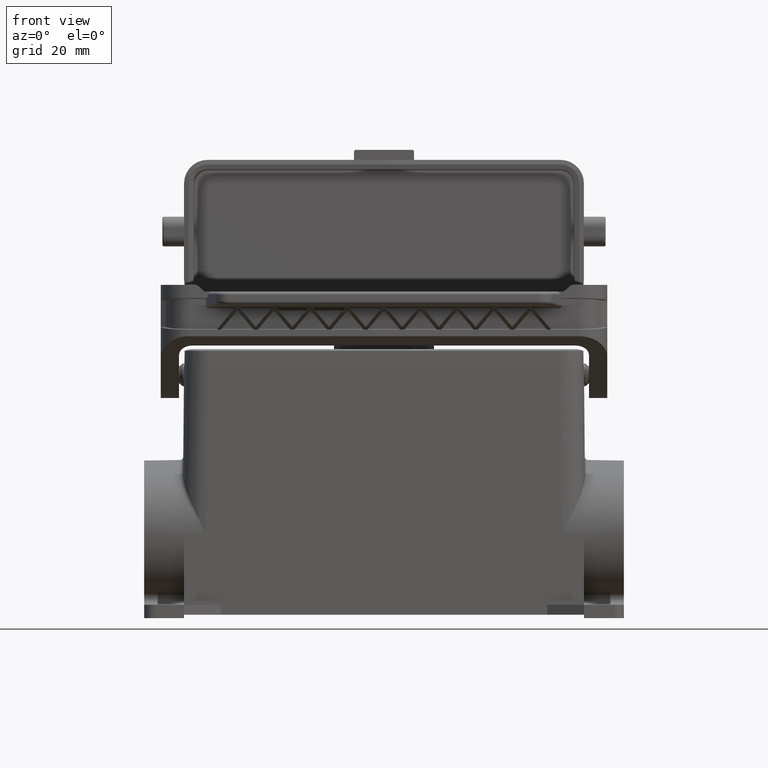
[diagram: clean part render]
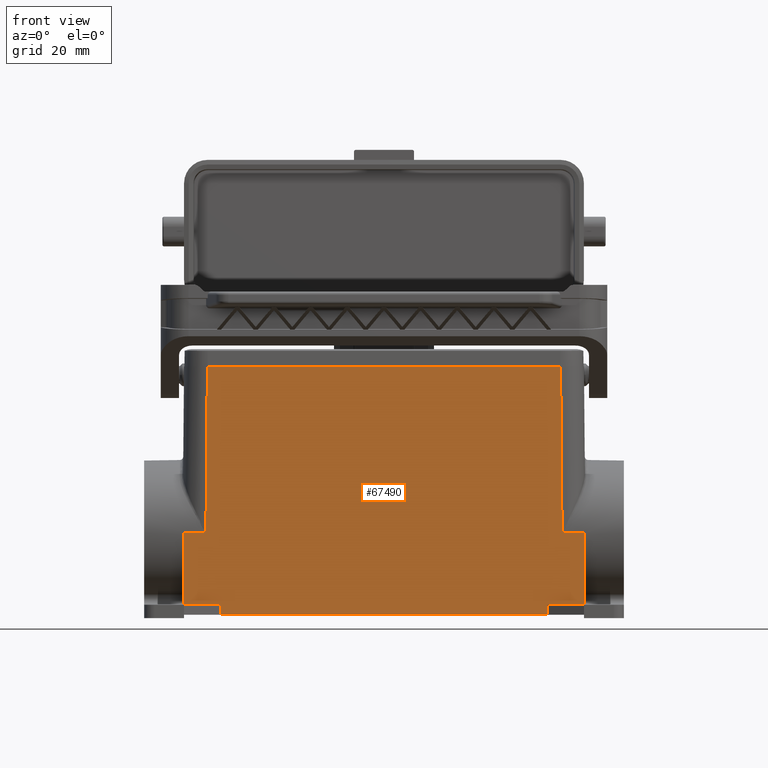
[diagram: same view with one face highlighted and labeled with its STEP entity id]
A machine part, front view. The second image highlights one B-rep face of the part: STEP entity #67490.
In plain terms, the highlighted planar face has unit normal (0, 1, -0.0087).
Its self-contained STEP definition (entity closure, byte-faithful):
#10350=CARTESIAN_POINT('',(120.318578,62.3290510470393,2.99999999999998)
);
#10360=VERTEX_POINT('',#10350);
#10390=CARTESIAN_POINT('',(0.,62.3290510470393,2.99999999999998));
#10400=DIRECTION('',(-1.,0.,0.));
#10410=VECTOR('',#10400,1.);
#10420=LINE('',#10390,#10410);
#10430=CARTESIAN_POINT('',(109.274971902942,62.3290510470393,
2.99999999999998));
#10440=VERTEX_POINT('',#10430);
#10450=EDGE_CURVE('',#10360,#10440,#10420,.T.);
#24870=CARTESIAN_POINT('',(113.753517422414,62.1397528838633,
24.691420990291));
#24880=VERTEX_POINT('',#24870);
#26250=CARTESIAN_POINT('',(113.968463101711,62.3546985631606,
0.0610857484885968));
#26260=DIRECTION('',(-0.00872620324394422,-0.00872620324394434,
0.99992385047757));
#26270=VECTOR('',#26260,1.);
#26280=LINE('',#26250,#26270);
#26290=CARTESIAN_POINT('',(113.318844538551,61.70508,74.5));
#26300=VERTEX_POINT('',#26290);
#26310=EDGE_CURVE('',#24880,#26300,#26280,.T.);
#36890=CARTESIAN_POINT('',(7.31831146144915,61.70508,74.5));
#36900=VERTEX_POINT('',#36890);
#37790=CARTESIAN_POINT('',(6.88363857758586,62.1397528838633,
24.691420990291));
#37800=VERTEX_POINT('',#37790);
#37830=CARTESIAN_POINT('',(6.66869289828858,62.3546985631606,
0.0610857484885968));
#37840=DIRECTION('',(0.00872620324394422,-0.00872620324394422,
0.99992385047757));
#37850=VECTOR('',#37840,1.);
#37860=LINE('',#37830,#37850);
#37870=EDGE_CURVE('',#37800,#36900,#37860,.T.);
#38710=CARTESIAN_POINT('',(109.320318038155,62.3552316504115,
-2.07853959453272E-14));
#38720=VERTEX_POINT('',#38710);
#38770=CARTESIAN_POINT('',(109.320318038155,62.3552316504115,0.));
#38780=DIRECTION('',(0.0151130766097477,0.00872553884892142,
-0.999847718348741));
#38790=VECTOR('',#38780,1.);
#38800=LINE('',#38770,#38790);
#38810=EDGE_CURVE('',#10440,#38720,#38800,.T.);
#40060=CARTESIAN_POINT('',(11.3168379618446,62.3552316504115,
-2.07853959453272E-14));
#40070=VERTEX_POINT('',#40060);
#41340=CARTESIAN_POINT('',(0.,62.3552316504115,-2.07853959453272E-14));
#41350=DIRECTION('',(1.,0.,0.));
#41360=VECTOR('',#41350,1.);
#41370=LINE('',#41340,#41360);
#41380=EDGE_CURVE('',#40070,#38720,#41370,.T.);
#57380=CARTESIAN_POINT('',(6.88196807191121,62.1414233895379,24.5));
#57390=VERTEX_POINT('',#57380);
#57400=EDGE_CURVE('',#57390,#37800,#37860,.T.);
#61730=CARTESIAN_POINT('',(120.318578,62.1414233895379,24.5));
#61740=VERTEX_POINT('',#61730);
#61770=CARTESIAN_POINT('',(120.318578,62.3552316504115,0.));
#61780=DIRECTION('',(0.,0.00872653549837406,-0.999961923064171));
#61790=VECTOR('',#61780,1.);
#61800=LINE('',#61770,#61790);
#61810=EDGE_CURVE('',#61740,#10360,#61800,.T.);
#65890=CARTESIAN_POINT('',(113.755187928089,62.1414233895379,24.5));
#65900=VERTEX_POINT('',#65890);
#65930=CARTESIAN_POINT('',(0.,62.1414233895379,24.5));
#65940=DIRECTION('',(1.,0.,0.));
#65950=VECTOR('',#65940,1.);
#65960=LINE('',#65930,#65950);
#65970=EDGE_CURVE('',#65900,#61740,#65960,.T.);
#66960=CARTESIAN_POINT('',(120.318578,62.3552068946289,
0.00283673171921426));
#66970=DIRECTION('',(-0.,-0.999961923064171,-0.00872653549837406));
#66980=DIRECTION('',(-1.,0.,0.));
#66990=AXIS2_PLACEMENT_3D('',#66960,#66970,#66980);
#67000=PLANE('',#66990);
#67010=ORIENTED_EDGE('',*,*,#65970,.T.);
#67020=EDGE_CURVE('',#65900,#24880,#26280,.T.);
#67030=ORIENTED_EDGE('',*,*,#67020,.F.);
#67040=ORIENTED_EDGE('',*,*,#26310,.F.);
#67050=CARTESIAN_POINT('',(120.637156,61.70508,74.5));
#67060=DIRECTION('',(1.,0.,0.));
#67070=VECTOR('',#67060,1.);
#67080=LINE('',#67050,#67070);
#67090=EDGE_CURVE('',#36900,#26300,#67080,.T.);
#67100=ORIENTED_EDGE('',*,*,#67090,.T.);
#67110=ORIENTED_EDGE('',*,*,#37870,.T.);
#67120=ORIENTED_EDGE('',*,*,#57400,.T.);
#67130=CARTESIAN_POINT('',(0.,62.1414233895379,24.5));
#67140=DIRECTION('',(-1.,0.,0.));
#67150=VECTOR('',#67140,1.);
#67160=LINE('',#67130,#67150);
#67170=CARTESIAN_POINT('',(0.31857799999996,62.1414233895379,24.5));
#67180=VERTEX_POINT('',#67170);
#67190=EDGE_CURVE('',#57390,#67180,#67160,.T.);
#67200=ORIENTED_EDGE('',*,*,#67190,.F.);
#67210=CARTESIAN_POINT('',(0.31857799999996,62.3552316504115,0.));
#67220=DIRECTION('',(0.,0.00872653549837406,-0.999961923064171));
#67230=VECTOR('',#67220,1.);
#67240=LINE('',#67210,#67230);
#67250=CARTESIAN_POINT('',(0.31857799999996,62.3290510470393,
2.99999999999998));
#67260=VERTEX_POINT('',#67250);
#67270=EDGE_CURVE('',#67180,#67260,#67240,.T.);
#67280=ORIENTED_EDGE('',*,*,#67270,.F.);
#67290=CARTESIAN_POINT('',(0.,62.3290510470393,2.99999999999998));
#67300=DIRECTION('',(1.,0.,0.));
#67310=VECTOR('',#67300,1.);
#67320=LINE('',#67290,#67310);
#67330=CARTESIAN_POINT('',(11.3621840970582,62.3290510470393,
2.99999999999998));
#67340=VERTEX_POINT('',#67330);
#67350=EDGE_CURVE('',#67260,#67340,#67320,.T.);
#67360=ORIENTED_EDGE('',*,*,#67350,.F.);
#67370=CARTESIAN_POINT('',(11.3168379618446,62.3552316504115,
-3.15544362088405E-30));
#67380=DIRECTION('',(-0.0151130766097477,0.0087255388489213,
-0.999847718348741));
#67390=VECTOR('',#67380,1.);
#67400=LINE('',#67370,#67390);
#67410=EDGE_CURVE('',#67340,#40070,#67400,.T.);
#67420=ORIENTED_EDGE('',*,*,#67410,.F.);
#67430=ORIENTED_EDGE('',*,*,#41380,.F.);
#67440=ORIENTED_EDGE('',*,*,#38810,.T.);
#67450=ORIENTED_EDGE('',*,*,#10450,.T.);
#67460=ORIENTED_EDGE('',*,*,#61810,.T.);
#67470=EDGE_LOOP('',(#67460,#67450,#67440,#67430,#67420,#67360,#67280,
#67200,#67120,#67110,#67100,#67040,#67030,#67010));
#67480=FACE_OUTER_BOUND('',#67470,.T.);
#67490=ADVANCED_FACE('',(#67480),#67000,.F.);